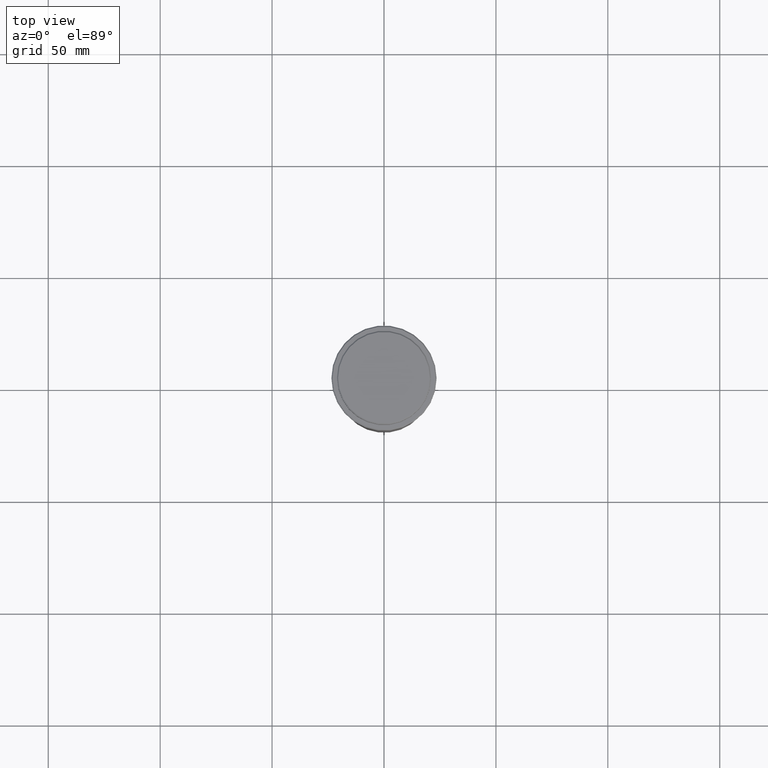
[diagram: clean part render]
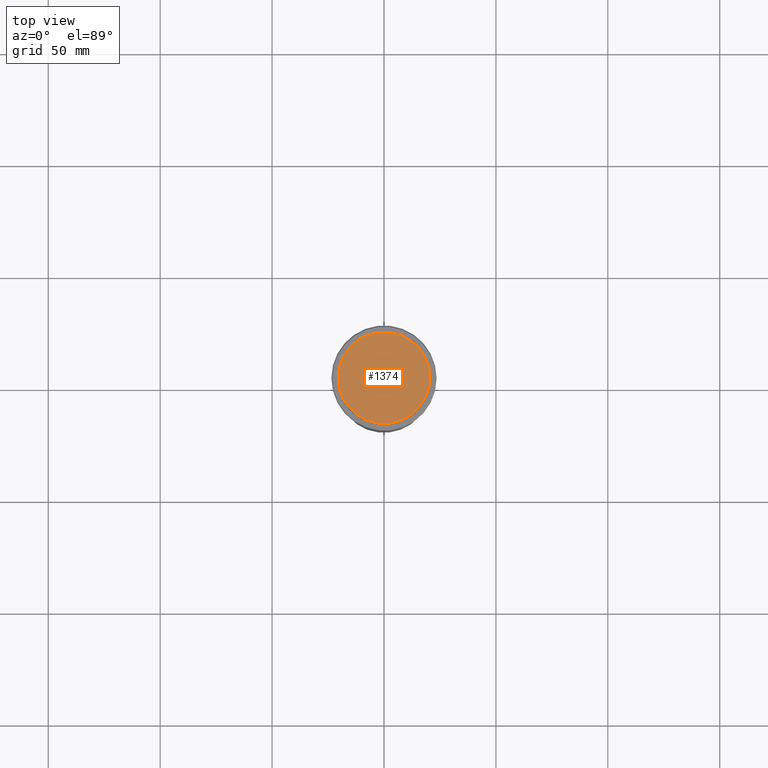
[diagram: same view with one face highlighted and labeled with its STEP entity id]
A machine part, top view. The second image highlights one B-rep face of the part: STEP entity #1374.
In plain terms, the highlighted planar face has unit normal (0, -0, 1).
Its self-contained STEP definition (entity closure, byte-faithful):
#39 = EDGE_CURVE ( 'NONE', #198, #400, #91, .T. ) ;
#55 = EDGE_LOOP ( 'NONE', ( #1142, #166 ) ) ;
#77 = CARTESIAN_POINT ( 'NONE',  ( 20.50000000000004619, 2.541142108230760635E-15, 0.000000000000000000 ) ) ;
#91 = CIRCLE ( 'NONE', #209, 20.50000000000004619 ) ;
#96 = DIRECTION ( 'NONE',  ( -0.000000000000000000, -0.000000000000000000, 1.000000000000000000 ) ) ;
#147 = DIRECTION ( 'NONE',  ( 1.000000000000000000, 0.000000000000000000, 0.000000000000000000 ) ) ;
#166 = ORIENTED_EDGE ( 'NONE', *, *, #39, .T. ) ;
#198 = VERTEX_POINT ( 'NONE', #77 ) ;
#209 = AXIS2_PLACEMENT_3D ( 'NONE', #904, #573, #468 ) ;
#229 = DIRECTION ( 'NONE',  ( 1.000000000000000000, 0.000000000000000000, 0.000000000000000000 ) ) ;
#285 = AXIS2_PLACEMENT_3D ( 'NONE', #420, #96, #229 ) ;
#352 = CARTESIAN_POINT ( 'NONE',  ( -20.50000000000004619, 0.000000000000000000, 0.000000000000000000 ) ) ;
#356 = CARTESIAN_POINT ( 'NONE',  ( 0.000000000000000000, 0.000000000000000000, 0.000000000000000000 ) ) ;
#400 = VERTEX_POINT ( 'NONE', #352 ) ;
#420 = CARTESIAN_POINT ( 'NONE',  ( 0.000000000000000000, 0.000000000000000000, 0.000000000000000000 ) ) ;
#468 = DIRECTION ( 'NONE',  ( 1.000000000000000000, 0.000000000000000000, 0.000000000000000000 ) ) ;
#524 = AXIS2_PLACEMENT_3D ( 'NONE', #356, #1017, #147 ) ;
#573 = DIRECTION ( 'NONE',  ( -0.000000000000000000, -0.000000000000000000, 1.000000000000000000 ) ) ;
#575 = FACE_OUTER_BOUND ( 'NONE', #55, .T. ) ;
#904 = CARTESIAN_POINT ( 'NONE',  ( 0.000000000000000000, 0.000000000000000000, 0.000000000000000000 ) ) ;
#962 = CIRCLE ( 'NONE', #285, 20.50000000000004619 ) ;
#1017 = DIRECTION ( 'NONE',  ( 0.000000000000000000, -0.000000000000000000, 1.000000000000000000 ) ) ;
#1142 = ORIENTED_EDGE ( 'NONE', *, *, #1307, .T. ) ;
#1307 = EDGE_CURVE ( 'NONE', #400, #198, #962, .T. ) ;
#1355 = PLANE ( 'NONE',  #524 ) ;
#1374 = ADVANCED_FACE ( 'NONE', ( #575 ), #1355, .T. ) ;